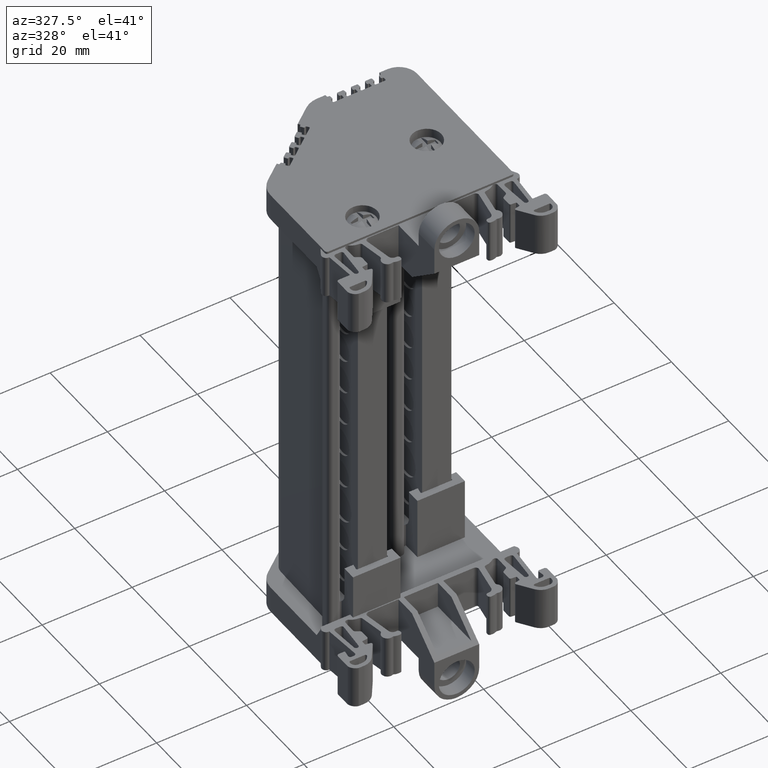
[diagram: clean part render]
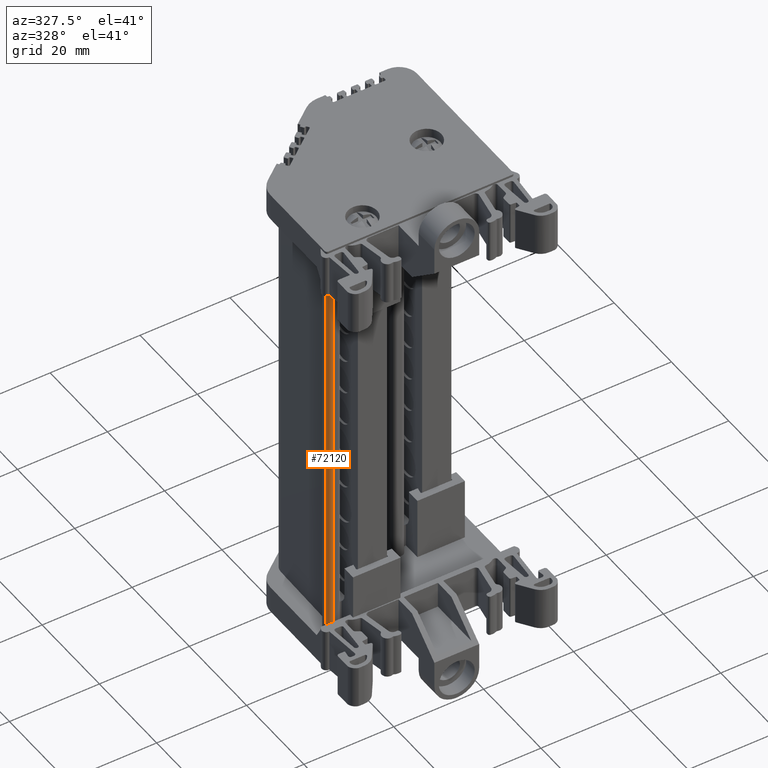
[diagram: same view with one face highlighted and labeled with its STEP entity id]
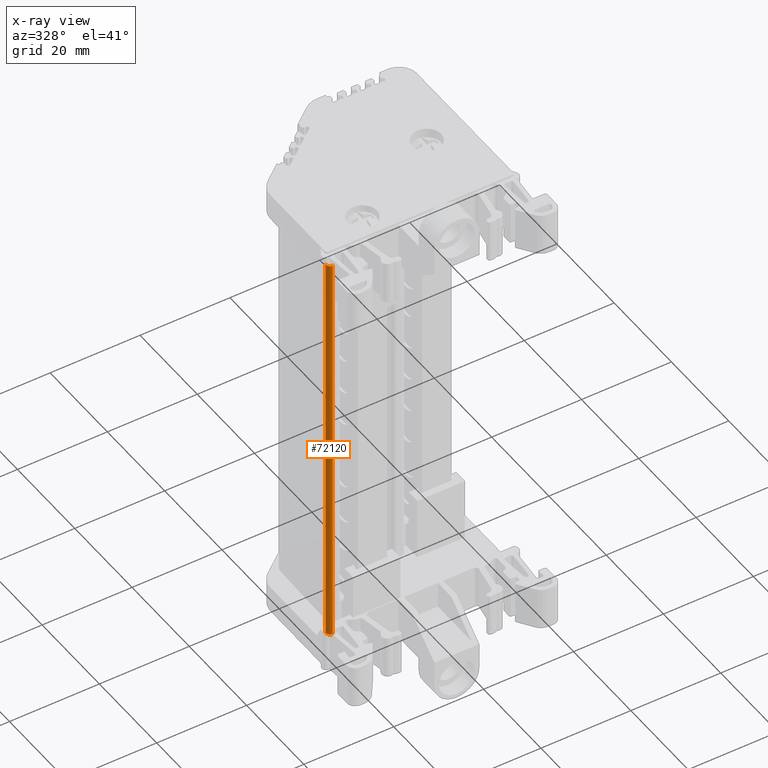
[diagram: x-ray of the same camera — body ghosted, the highlighted face saturated]
A machine part, auxiliary view. The second image highlights one B-rep face of the part: STEP entity #72120.
The next image is the same camera in x-ray: the body ghosted, the highlighted face saturated — about 0% of this face is hidden behind the body in this view.
In plain terms, the highlighted cylindrical surface (edge-blend (fillet) strip) has radius 0.9996 mm, axis along (-0, -0, -1).
Its self-contained STEP definition (entity closure, byte-faithful):
#8212 = AXIS2_PLACEMENT_3D ( 'NONE', #68985, #68990, #69014 ) ;
#11861 = EDGE_LOOP ( 'NONE', ( #25135, #25138, #25105, #25191 ) ) ;
#18433 = CARTESIAN_POINT ( 'NONE',  ( -65.55615351123408600, 13.46740873739492100, -36.09641155509525100 ) ) ;
#18448 = CARTESIAN_POINT ( 'NONE',  ( -66.03398578680763400, 14.35929767626117700, -36.09641155509502400 ) ) ;
#18451 = CARTESIAN_POINT ( 'NONE',  ( -65.03436457469416600, 13.35967646414747800, -36.09641155509565600 ) ) ;
#18495 = CARTESIAN_POINT ( 'NONE',  ( -65.92625351356085200, 13.83750873972132200, -36.09641155509505900 ) ) ;
#18518 = CARTESIAN_POINT ( 'NONE',  ( -66.03398578680766200, 14.09759745489890100, -36.09641155509500300 ) ) ;
#18526 = CARTESIAN_POINT ( 'NONE',  ( -65.29606479605642700, 13.35967646414834100, -36.09641155509539300 ) ) ;
#23800 = EDGE_CURVE ( 'NONE', #58603, #58478, #84252, .T. ) ;
#25105 = ORIENTED_EDGE ( 'NONE', *, *, #38184, .T. ) ;
#25135 = ORIENTED_EDGE ( 'NONE', *, *, #38186, .T. ) ;
#25138 = ORIENTED_EDGE ( 'NONE', *, *, #23800, .T. ) ;
#25191 = ORIENTED_EDGE ( 'NONE', *, *, #53358, .T. ) ;
#36596 = B_SPLINE_CURVE_WITH_KNOTS ( 'NONE', 3,
 ( #18448, #18518, #18495, #18433, #18526, #18451 ),
 .UNSPECIFIED., .F., .F.,
 ( 4, 2, 4 ),
 ( 0.0000000000000000000, 0.5000000000000000000, 1.000000000000000000 ),
 .UNSPECIFIED. ) ;
#38184 = EDGE_CURVE ( 'NONE', #58478, #58502, #44585, .T. ) ;
#38186 = EDGE_CURVE ( 'NONE', #58556, #58603, #44502, .T. ) ;
#44471 = CARTESIAN_POINT ( 'NONE',  ( -66.03398578675135900, 14.35929767626287300, 69.63360738339025600 ) ) ;
#44502 = LINE ( 'NONE', #44551, #55199 ) ;
#44531 = DIRECTION ( 'NONE',  ( -5.325625425352352500E-013, -1.604252062634170100E-014, -1.000000000000000000 ) ) ;
#44551 = CARTESIAN_POINT ( 'NONE',  ( -65.03436457469416600, 13.35967646414709400, -37.12593807023638000 ) ) ;
#44585 = LINE ( 'NONE', #44471, #55197 ) ;
#44639 = DIRECTION ( 'NONE',  ( 3.229646657840519100E-028, 1.604252062635242300E-014, 1.000000000000000000 ) ) ;
#53358 = EDGE_CURVE ( 'NONE', #58502, #58556, #36596, .T. ) ;
#55197 = VECTOR ( 'NONE', #44531, 1000.000000000000000 ) ;
#55199 = VECTOR ( 'NONE', #44639, 1000.000000000000000 ) ;
#58478 = VERTEX_POINT ( 'NONE', #58932 ) ;
#58502 = VERTEX_POINT ( 'NONE', #58930 ) ;
#58556 = VERTEX_POINT ( 'NONE', #59023 ) ;
#58603 = VERTEX_POINT ( 'NONE', #58994 ) ;
#58930 = CARTESIAN_POINT ( 'NONE',  ( -66.03398578680763400, 14.35929767626117700, -36.09641155509502400 ) ) ;
#58932 = CARTESIAN_POINT ( 'NONE',  ( -66.03398578675890500, 14.35929767626228000, 55.46945965625049300 ) ) ;
#58994 = CARTESIAN_POINT ( 'NONE',  ( -65.03436457468197300, 13.35967646414894500, 55.46945965624996700 ) ) ;
#59023 = CARTESIAN_POINT ( 'NONE',  ( -65.03436457469416600, 13.35967646414747800, -36.09641155509565600 ) ) ;
#68985 = CARTESIAN_POINT ( 'NONE',  ( -65.03436457463875800, 14.35929767626287300, 69.63360738338971600 ) ) ;
#68990 = DIRECTION ( 'NONE',  ( -5.325625425352352500E-013, -1.604252062634170100E-014, -1.000000000000000000 ) ) ;
#69014 = DIRECTION ( 'NONE',  ( -1.000000000000000000, 0.0000000000000000000, 5.275557684319606700E-013 ) ) ;
#69019 = FACE_OUTER_BOUND ( 'NONE', #11861, .T. ) ;
#69036 = CYLINDRICAL_SURFACE ( 'NONE', #8212, 0.9996212121125974700 ) ;
#71096 = CARTESIAN_POINT ( 'NONE',  ( -65.03436457468197300, 13.35967646414894500, 55.46945965624996700 ) ) ;
#71098 = CARTESIAN_POINT ( 'NONE',  ( -66.03398578675890500, 14.35929767626228000, 55.46945965625049300 ) ) ;
#71103 = CARTESIAN_POINT ( 'NONE',  ( -65.29606479600769800, 13.35967646414981200, 55.46945965625010900 ) ) ;
#71105 = CARTESIAN_POINT ( 'NONE',  ( -65.92625351351209400, 13.83750873972279500, 55.46945965625044300 ) ) ;
#71163 = CARTESIAN_POINT ( 'NONE',  ( -65.55615351118537100, 13.46740873739639700, 55.46945965625025100 ) ) ;
#71167 = CARTESIAN_POINT ( 'NONE',  ( -66.03398578675890500, 14.09759745490037700, 55.46945965625050700 ) ) ;
#72120 = ADVANCED_FACE ( 'NONE', ( #69019 ), #69036, .T. ) ;
#84252 = B_SPLINE_CURVE_WITH_KNOTS ( 'NONE', 3,
 ( #71096, #71103, #71163, #71105, #71167, #71098 ),
 .UNSPECIFIED., .F., .F.,
 ( 4, 2, 4 ),
 ( 0.0000000000000000000, 0.5000000000000000000, 1.000000000000000000 ),
 .UNSPECIFIED. ) ;